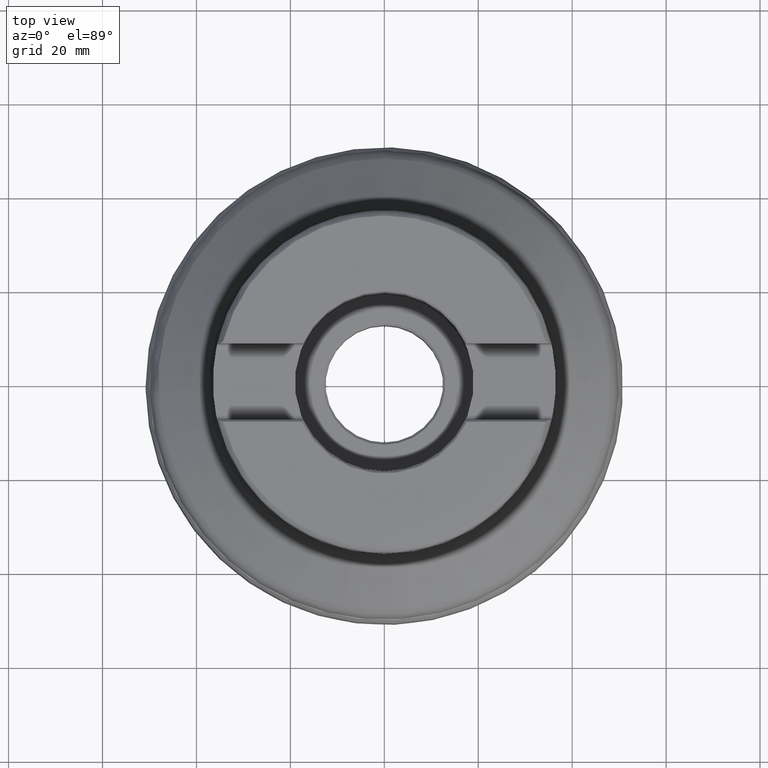
[diagram: clean part render]
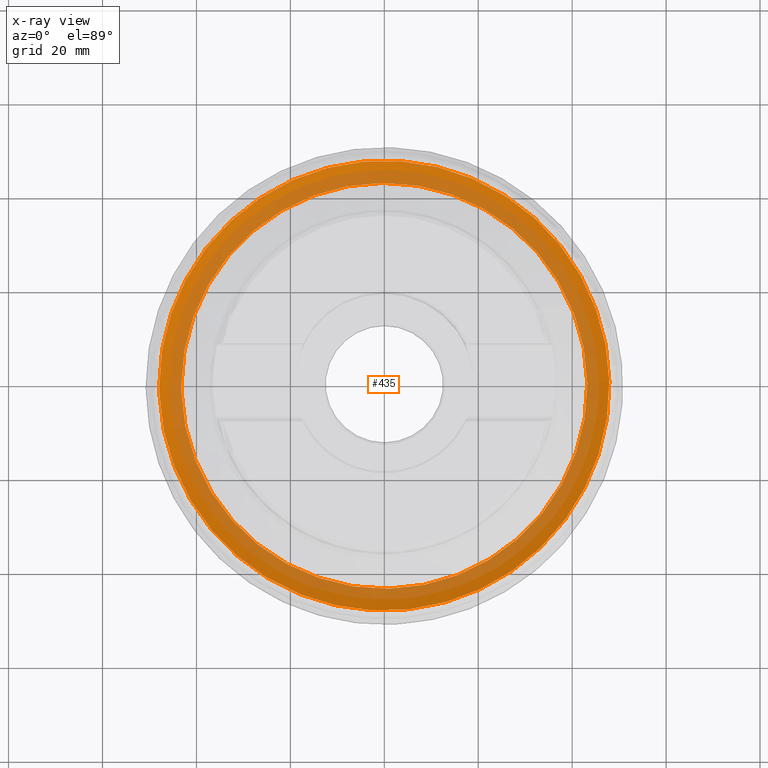
[diagram: x-ray — body ghosted, one internal face saturated and labeled with its STEP entity id]
A machine part, top view, then the same camera in x-ray: the body is ghosted and one INTERNAL B-rep face — a face not visible from any outside direction — is saturated and labeled: STEP entity #435.
In plain terms, the highlighted face is a SurfaceOfRevolution surface.
Its self-contained STEP definition (entity closure, byte-faithful):
#130=SURFACE_OF_REVOLUTION('',#1192,#154);
#154=AXIS1_PLACEMENT('',#2482,#1615);
#272=FACE_BOUND('',#600,.T.);
#273=FACE_BOUND('',#601,.T.);
#435=ADVANCED_FACE('',(#272,#273),#130,.F.);
#600=EDGE_LOOP('',(#905));
#601=EDGE_LOOP('',(#906));
#669=CIRCLE('',#1316,43.218337284987);
#670=CIRCLE('',#1317,47.921680513257);
#905=ORIENTED_EDGE('',*,*,#1123,.T.);
#906=ORIENTED_EDGE('',*,*,#1124,.F.);
#1004=VERTEX_POINT('',#2467);
#1005=VERTEX_POINT('',#2475);
#1123=EDGE_CURVE('',#1004,#1004,#669,.T.);
#1124=EDGE_CURVE('',#1005,#1005,#670,.T.);
#1192=B_SPLINE_CURVE_WITH_KNOTS('',5,(#2476,#2477,#2478,#2479,#2480,#2481),
 .UNSPECIFIED.,.F.,.F.,(6,6),(0.,1.),.UNSPECIFIED.);
#1316=AXIS2_PLACEMENT_3D('',#2466,#1610,#1611);
#1317=AXIS2_PLACEMENT_3D('',#2474,#1613,#1614);
#1610=DIRECTION('',(0.,0.,-1.));
#1611=DIRECTION('',(-1.,0.,0.));
#1613=DIRECTION('',(0.,0.,-1.));
#1614=DIRECTION('',(-1.,0.,0.));
#1615=DIRECTION('',(0.,0.,-1.));
#2466=CARTESIAN_POINT('',(0.,0.,6.99750393365537));
#2467=CARTESIAN_POINT('',(-43.218337284987,0.,6.99750393365537));
#2474=CARTESIAN_POINT('',(0.,0.,9.63588125037129));
#2475=CARTESIAN_POINT('',(-47.921680513257,0.,9.63588125037129));
#2476=CARTESIAN_POINT('',(47.7581328562106,-3.95578185273907,9.63588123624509));
#2477=CARTESIAN_POINT('',(46.8058393133186,-3.95046655270054,9.123251216309));
#2478=CARTESIAN_POINT('',(45.857626482915,-3.94647978850796,8.60302614671187));
#2479=CARTESIAN_POINT('',(44.9135538591596,-3.94381443539156,8.07529528298173));
#2480=CARTESIAN_POINT('',(43.9736947763409,-3.94246907219969,7.54011314511));
#2481=CARTESIAN_POINT('',(43.0381433383134,-3.94244792859529,6.99750393365537));
#2482=CARTESIAN_POINT('',(0.,0.,0.));